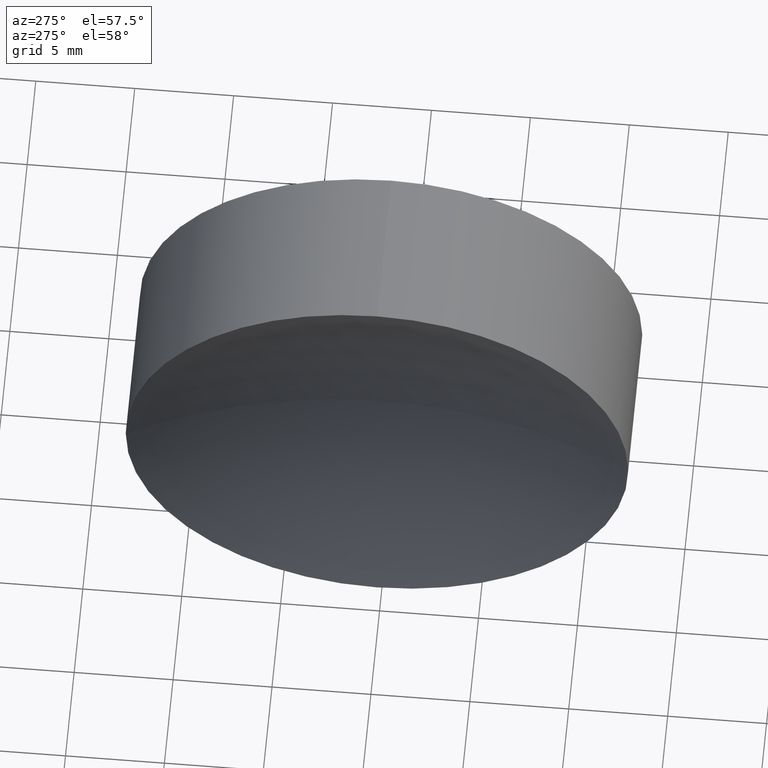
[diagram: clean part render]
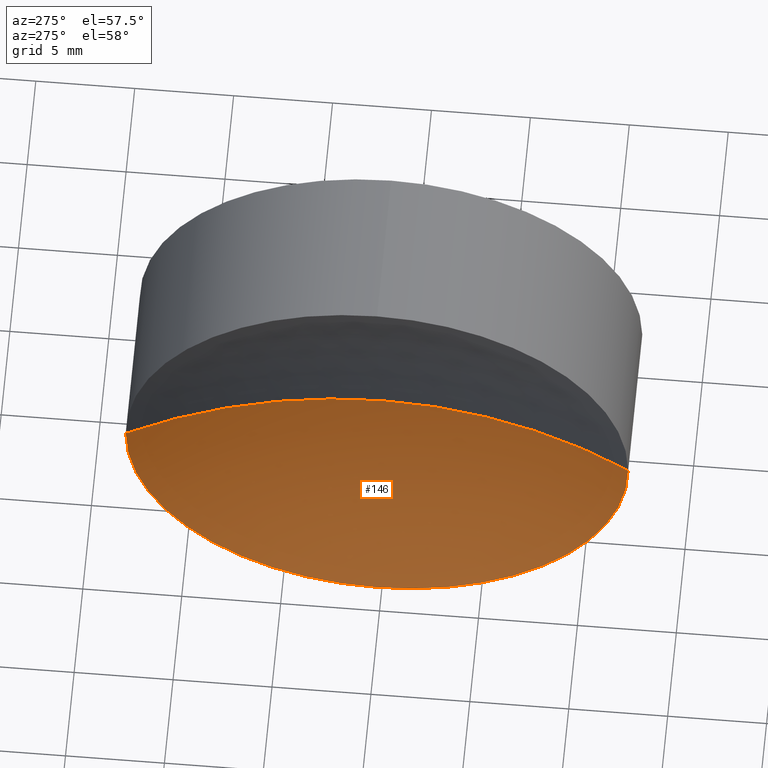
[diagram: same view with one face highlighted and labeled with its STEP entity id]
A machine part, auxiliary view. The second image highlights one B-rep face of the part: STEP entity #146.
In plain terms, the highlighted spherical surface has radius 27.82 mm.
Its self-contained STEP definition (entity closure, byte-faithful):
#9 = DIRECTION ( 'NONE',  ( 0.0000000000000000000, 1.224646799147353200E-016, -1.000000000000000000 ) ) ;
#18 = CARTESIAN_POINT ( 'NONE',  ( 116.0347215457702200, 65.22260287298739500, 0.0000000000000000000 ) ) ;
#19 = CIRCLE ( 'NONE', #28, 12.70000000000000300 ) ;
#28 = AXIS2_PLACEMENT_3D ( 'NONE', #178, #132, #73 ) ;
#49 = CIRCLE ( 'NONE', #112, 12.70000000000000300 ) ;
#54 = DIRECTION ( 'NONE',  ( -1.000000000000000000, -0.0000000000000000000, -0.0000000000000000000 ) ) ;
#56 = SPHERICAL_SURFACE ( 'NONE', #59, 27.82000000000000000 ) ;
#59 = AXIS2_PLACEMENT_3D ( 'NONE', #133, #145, #203 ) ;
#62 = ORIENTED_EDGE ( 'NONE', *, *, #74, .T. ) ;
#65 = CIRCLE ( 'NONE', #166, 27.81999999999999700 ) ;
#70 = EDGE_CURVE ( 'NONE', #110, #172, #49, .T. ) ;
#71 = ORIENTED_EDGE ( 'NONE', *, *, #70, .T. ) ;
#73 = DIRECTION ( 'NONE',  ( 0.0000000000000000000, 0.0000000000000000000, 1.000000000000000000 ) ) ;
#74 = EDGE_CURVE ( 'NONE', #231, #184, #65, .T. ) ;
#78 = CARTESIAN_POINT ( 'NONE',  ( 91.28270344622933400, 65.22260287298738000, 0.0000000000000000000 ) ) ;
#89 = EDGE_CURVE ( 'NONE', #184, #110, #19, .T. ) ;
#97 = DIRECTION ( 'NONE',  ( 1.000000000000000000, 0.0000000000000000000, 0.0000000000000000000 ) ) ;
#99 = CARTESIAN_POINT ( 'NONE',  ( 119.1027034462293400, 65.22260287298738000, 0.0000000000000000000 ) ) ;
#100 = CARTESIAN_POINT ( 'NONE',  ( 116.0347215457702200, 65.22260287298739500, -12.70000000000000100 ) ) ;
#106 = CARTESIAN_POINT ( 'NONE',  ( 116.0347215457702200, 77.92260287298738300, 0.0000000000000000000 ) ) ;
#110 = VERTEX_POINT ( 'NONE', #100 ) ;
#111 = DIRECTION ( 'NONE',  ( 0.0000000000000000000, 0.0000000000000000000, 1.000000000000000000 ) ) ;
#112 = AXIS2_PLACEMENT_3D ( 'NONE', #18, #54, #200 ) ;
#118 = CIRCLE ( 'NONE', #169, 27.81999999999999700 ) ;
#120 = CARTESIAN_POINT ( 'NONE',  ( 116.0347215457702200, 52.52260287298737800, -1.555301434917137800E-015 ) ) ;
#129 = EDGE_CURVE ( 'NONE', #231, #172, #118, .T. ) ;
#132 = DIRECTION ( 'NONE',  ( -1.000000000000000000, -0.0000000000000000000, -0.0000000000000000000 ) ) ;
#133 = CARTESIAN_POINT ( 'NONE',  ( 91.28270344622933400, 65.22260287298738000, 0.0000000000000000000 ) ) ;
#145 = DIRECTION ( 'NONE',  ( 0.0000000000000000000, 0.0000000000000000000, -1.000000000000000000 ) ) ;
#146 = ADVANCED_FACE ( 'NONE', ( #213 ), #56, .F. ) ;
#149 = DIRECTION ( 'NONE',  ( 0.0000000000000000000, 1.000000000000000000, 1.224646799147353200E-016 ) ) ;
#158 = ORIENTED_EDGE ( 'NONE', *, *, #129, .F. ) ;
#166 = AXIS2_PLACEMENT_3D ( 'NONE', #78, #111, #97 ) ;
#169 = AXIS2_PLACEMENT_3D ( 'NONE', #185, #9, #149 ) ;
#172 = VERTEX_POINT ( 'NONE', #120 ) ;
#178 = CARTESIAN_POINT ( 'NONE',  ( 116.0347215457702200, 65.22260287298739500, 0.0000000000000000000 ) ) ;
#184 = VERTEX_POINT ( 'NONE', #106 ) ;
#185 = CARTESIAN_POINT ( 'NONE',  ( 91.28270344622933400, 65.22260287298738000, 0.0000000000000000000 ) ) ;
#200 = DIRECTION ( 'NONE',  ( 0.0000000000000000000, 0.0000000000000000000, 1.000000000000000000 ) ) ;
#203 = DIRECTION ( 'NONE',  ( 0.0000000000000000000, 1.000000000000000000, 0.0000000000000000000 ) ) ;
#210 = EDGE_LOOP ( 'NONE', ( #158, #62, #225, #71 ) ) ;
#213 = FACE_OUTER_BOUND ( 'NONE', #210, .T. ) ;
#225 = ORIENTED_EDGE ( 'NONE', *, *, #89, .T. ) ;
#231 = VERTEX_POINT ( 'NONE', #99 ) ;